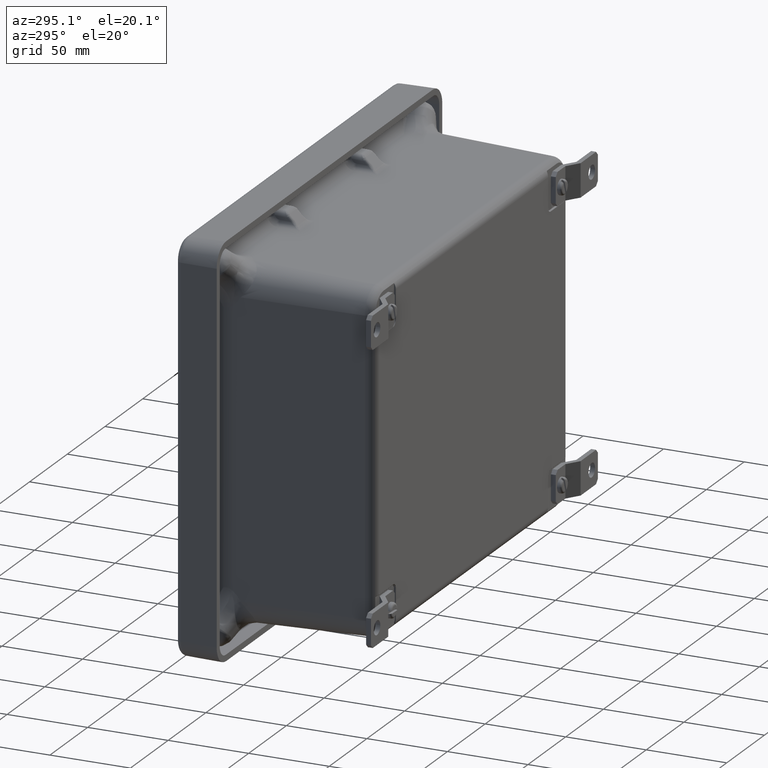
[diagram: clean part render]
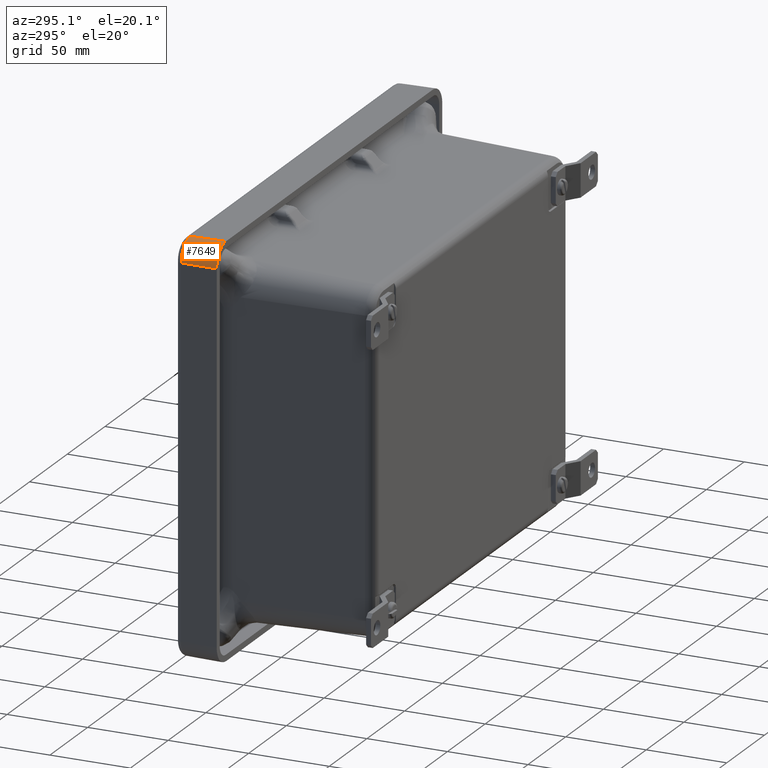
[diagram: same view with one face highlighted and labeled with its STEP entity id]
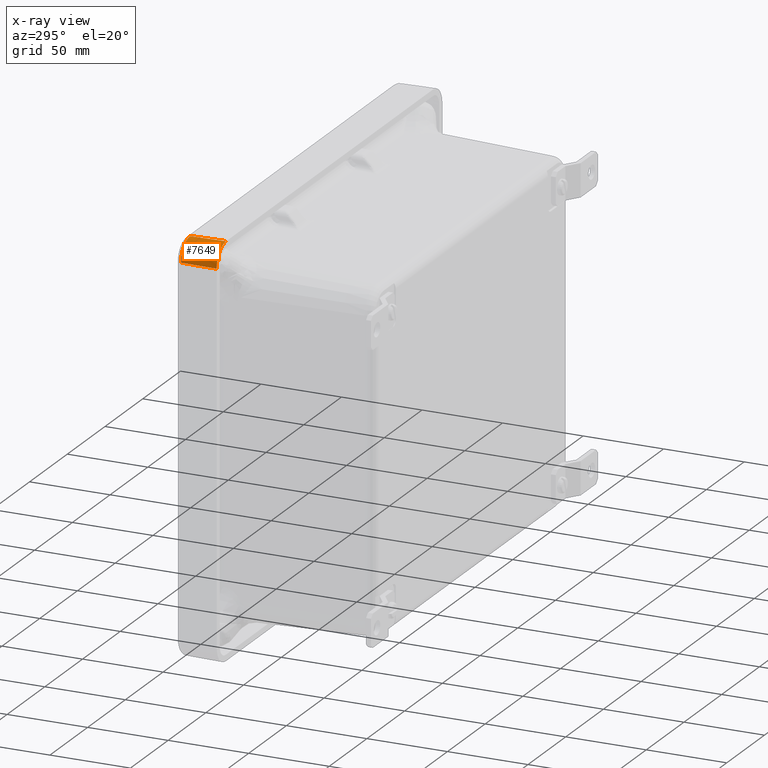
[diagram: x-ray of the same camera — body ghosted, the highlighted face saturated]
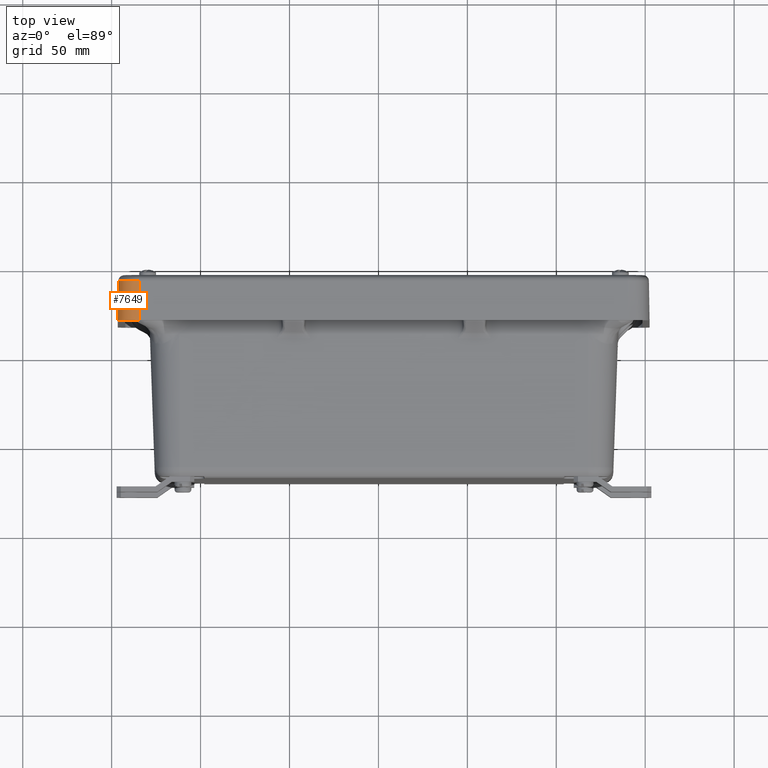
[diagram: same view with one face highlighted and labeled with its STEP entity id]
A machine part, auxiliary view. The second image highlights one B-rep face of the part: STEP entity #7649.
The next image is the same camera in x-ray: the body ghosted, the highlighted face saturated — about 0% of this face is hidden behind the body in this view.
A second angle (top view) of the same face is appended — the face is thin or edge-on in the first view.
In plain terms, the highlighted conical surface has half-angle 1 deg.
Its self-contained STEP definition (entity closure, byte-faithful):
#683 = AXIS2_PLACEMENT_3D ( 'NONE', #5591, #28052, #8833 ) ;
#2429 = ORIENTED_EDGE ( 'NONE', *, *, #7407, .T. ) ;
#3762 = DIRECTION ( 'NONE',  ( 0.0000000000000000000, 0.0000000000000000000, -1.000000000000000000 ) ) ;
#3898 = DIRECTION ( 'NONE',  ( -0.0000000000000000000, 1.000000000000000000, 0.0000000000000000000 ) ) ;
#4653 = CARTESIAN_POINT ( 'NONE',  ( 5.400000000000002100, 0.1228184491953397700, 4.933143804005087700 ) ) ;
#5591 = CARTESIAN_POINT ( 'NONE',  ( 5.400000000000002100, 0.1228184491953397700, 4.462000000000000600 ) ) ;
#7407 = EDGE_CURVE ( 'NONE', #26382, #20185, #12090, .T. ) ;
#7592 = ORIENTED_EDGE ( 'NONE', *, *, #35298, .T. ) ;
#7649 = ADVANCED_FACE ( 'NONE', ( #32631 ), #40223, .T. ) ;
#8002 = LINE ( 'NONE', #26796, #16538 ) ;
#8526 = VECTOR ( 'NONE', #12518, 39.37007874015748100 ) ;
#8833 = DIRECTION ( 'NONE',  ( 0.0000000000000000000, 0.0000000000000000000, 1.000000000000000000 ) ) ;
#8843 = CARTESIAN_POINT ( 'NONE',  ( 5.886455064928217200, 1.000000000000000200, 4.462000000000000600 ) ) ;
#9463 = CARTESIAN_POINT ( 'NONE',  ( 5.871143804005088300, 0.1228184491953397700, 4.462000000000000600 ) ) ;
#12090 = CIRCLE ( 'NONE', #683, 0.4711438040050867100 ) ;
#12518 = DIRECTION ( 'NONE',  ( -0.01745240643728354600, -0.9998476951563912700, -0.0000000000000000000 ) ) ;
#13083 = CARTESIAN_POINT ( 'NONE',  ( 5.400000000000002100, 1.000000000000000200, 4.462000000000000600 ) ) ;
#16302 = DIRECTION ( 'NONE',  ( 0.0000000000000000000, 0.0000000000000000000, -1.000000000000000000 ) ) ;
#16538 = VECTOR ( 'NONE', #17271, 39.37007874015748100 ) ;
#17271 = DIRECTION ( 'NONE',  ( -0.0000000000000000000, -0.9998476951563912700, -0.01745240643728354600 ) ) ;
#20130 = ORIENTED_EDGE ( 'NONE', *, *, #34865, .F. ) ;
#20185 = VERTEX_POINT ( 'NONE', #9463 ) ;
#20824 = VERTEX_POINT ( 'NONE', #22858 ) ;
#22813 = EDGE_CURVE ( 'NONE', #20824, #32681, #25458, .T. ) ;
#22858 = CARTESIAN_POINT ( 'NONE',  ( 5.400000000000002100, 1.000000000000000200, 4.948455064928215700 ) ) ;
#25128 = CARTESIAN_POINT ( 'NONE',  ( 5.868999999999999800, 0.0000000000000000000, 4.462000000000000600 ) ) ;
#25458 = CIRCLE ( 'NONE', #28311, 0.4864550649282159400 ) ;
#26210 = CARTESIAN_POINT ( 'NONE',  ( 5.400000000000002100, 0.0000000000000000000, 4.462000000000000600 ) ) ;
#26382 = VERTEX_POINT ( 'NONE', #4653 ) ;
#26599 = LINE ( 'NONE', #25128, #8526 ) ;
#26796 = CARTESIAN_POINT ( 'NONE',  ( 5.400000000000002100, 0.0000000000000000000, 4.930999999999998300 ) ) ;
#28052 = DIRECTION ( 'NONE',  ( -0.0000000000000000000, 1.000000000000000000, 0.0000000000000000000 ) ) ;
#28311 = AXIS2_PLACEMENT_3D ( 'NONE', #13083, #35512, #16302 ) ;
#32631 = FACE_OUTER_BOUND ( 'NONE', #38332, .T. ) ;
#32681 = VERTEX_POINT ( 'NONE', #8843 ) ;
#34865 = EDGE_CURVE ( 'NONE', #32681, #20185, #26599, .T. ) ;
#35298 = EDGE_CURVE ( 'NONE', #20824, #26382, #8002, .T. ) ;
#35512 = DIRECTION ( 'NONE',  ( -0.0000000000000000000, 1.000000000000000000, -0.0000000000000000000 ) ) ;
#37260 = AXIS2_PLACEMENT_3D ( 'NONE', #26210, #3898, #3762 ) ;
#38332 = EDGE_LOOP ( 'NONE', ( #7592, #2429, #20130, #40685 ) ) ;
#40223 = CONICAL_SURFACE ( 'NONE', #37260, 0.4689999999999987500, 0.01745329251994332700 ) ;
#40685 = ORIENTED_EDGE ( 'NONE', *, *, #22813, .F. ) ;